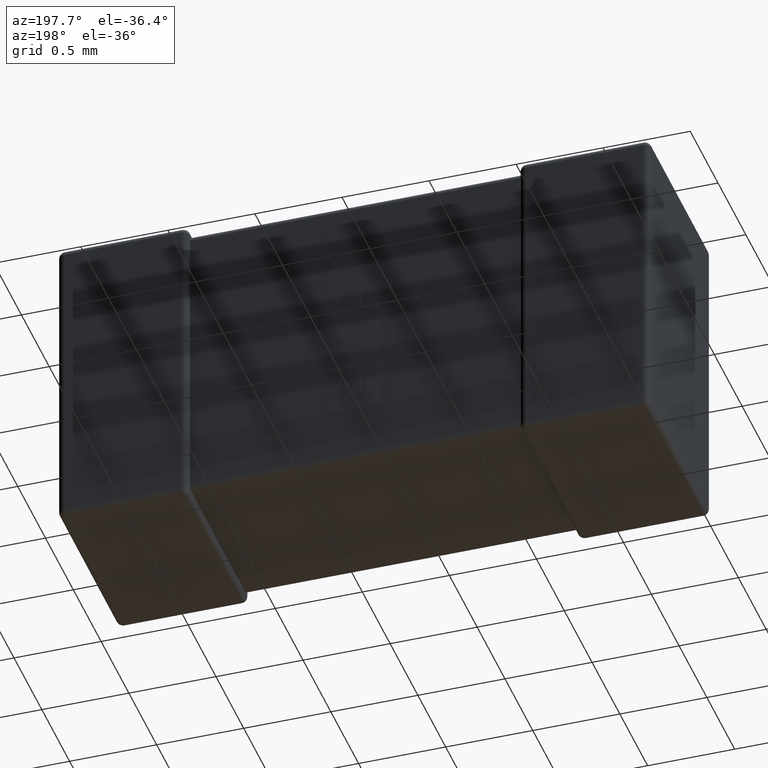
[diagram: clean part render]
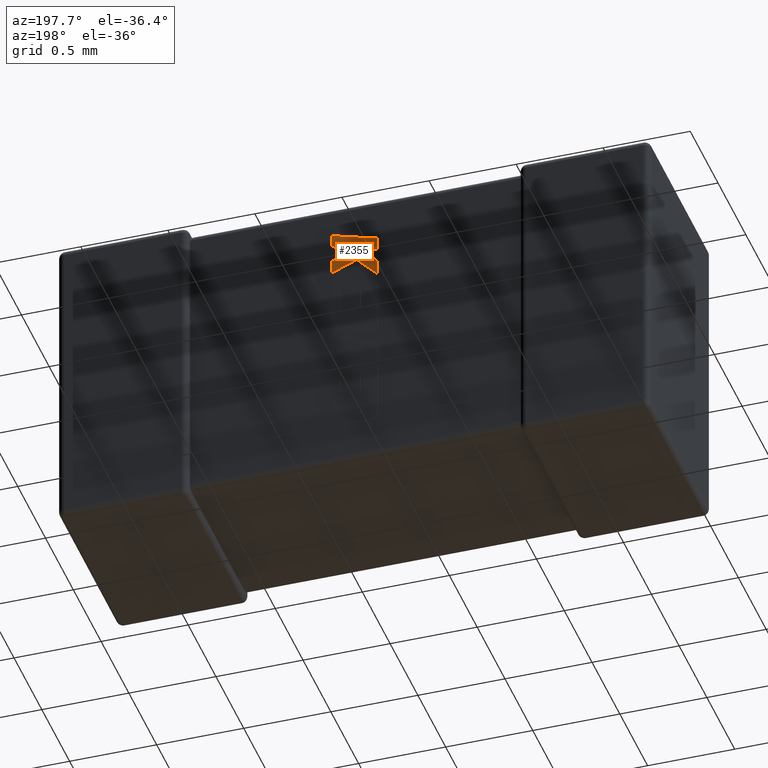
[diagram: same view with one face highlighted and labeled with its STEP entity id]
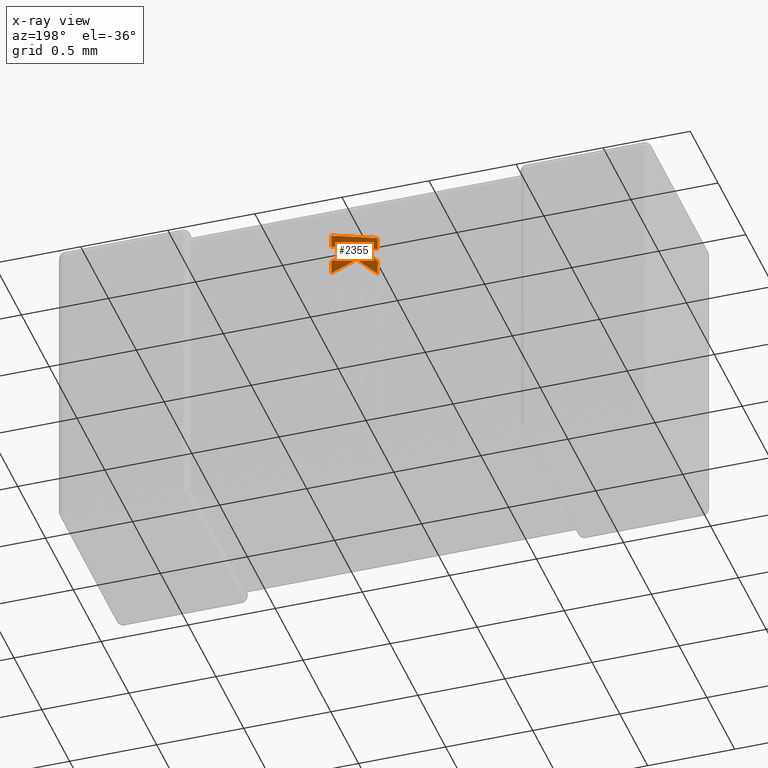
[diagram: x-ray of the same camera — body ghosted, the highlighted face saturated]
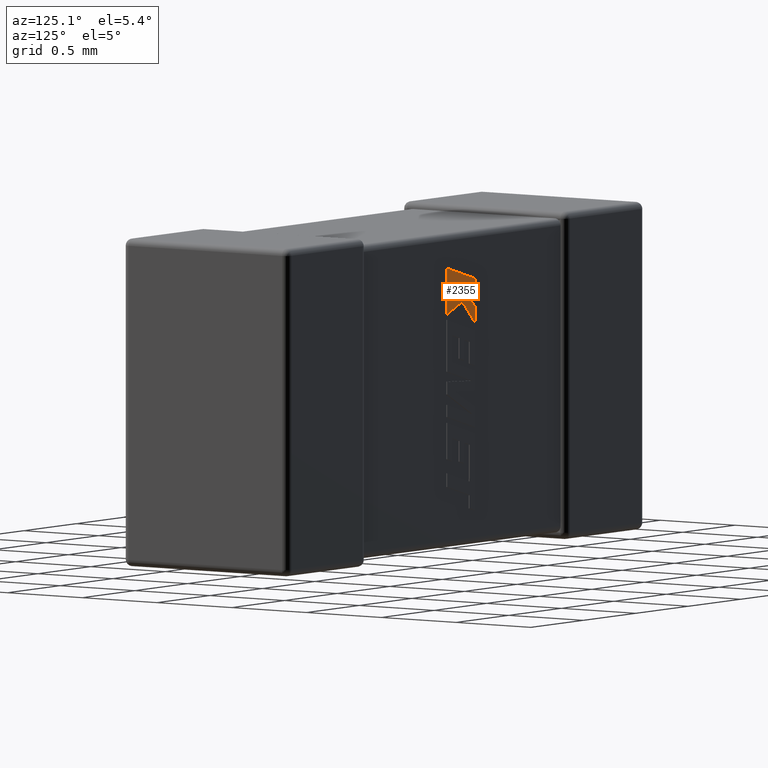
[diagram: same view with one face highlighted and labeled with its STEP entity id]
A machine part, auxiliary view. The second image highlights one B-rep face of the part: STEP entity #2355.
The next image is the same camera in x-ray: the body ghosted, the highlighted face saturated — about 0% of this face is hidden behind the body in this view.
A second angle (auxiliary view) of the same face is appended — the face is thin or edge-on in the first view.
In plain terms, the highlighted planar face has unit normal (0, -1, 0).
Its self-contained STEP definition (entity closure, byte-faithful):
#66 = EDGE_LOOP ( 'NONE', ( #1711, #3273, #3480, #2484, #4471, #1623, #2003, #3711, #3903, #789, #3450 ) ) ;
#153 = LINE ( 'NONE', #2323, #916 ) ;
#155 = VERTEX_POINT ( 'NONE', #2754 ) ;
#271 = DIRECTION ( 'NONE',  ( -0.6995643972270459976, 0.000000000000000000, -0.7145695586381775044 ) ) ;
#295 = LINE ( 'NONE', #347, #4530 ) ;
#334 = LINE ( 'NONE', #4652, #4189 ) ;
#347 = CARTESIAN_POINT ( 'NONE',  ( 1.571380152701791211, 1.067560000000000064, -0.3010471684901749878 ) ) ;
#353 = DIRECTION ( 'NONE',  ( 0.000000000000000000, 0.000000000000000000, 1.000000000000000000 ) ) ;
#439 = VERTEX_POINT ( 'NONE', #4401 ) ;
#500 = VECTOR ( 'NONE', #2322, 1000.000000000000000 ) ;
#638 = CARTESIAN_POINT ( 'NONE',  ( 1.571380152701791211, 1.067560000000000064, -0.3763935266988795436 ) ) ;
#678 = VECTOR ( 'NONE', #4644, 1000.000000000000000 ) ;
#789 = ORIENTED_EDGE ( 'NONE', *, *, #2748, .T. ) ;
#795 = EDGE_CURVE ( 'NONE', #439, #3981, #1867, .T. ) ;
#800 = LINE ( 'NONE', #1604, #1260 ) ;
#916 = VECTOR ( 'NONE', #1592, 1000.000000000000000 ) ;
#943 = CARTESIAN_POINT ( 'NONE',  ( 1.571380152701791211, 1.067560000000000064, -0.5435918942235931084 ) ) ;
#967 = CARTESIAN_POINT ( 'NONE',  ( 1.692318604814406546, 1.067560000000000064, -0.4200593978715118637 ) ) ;
#1220 = CARTESIAN_POINT ( 'NONE',  ( 1.571380152701791211, 1.067560000000000064, -0.4565079695552462513 ) ) ;
#1252 = VERTEX_POINT ( 'NONE', #2826 ) ;
#1257 = VECTOR ( 'NONE', #271, 1000.000000000000114 ) ;
#1260 = VECTOR ( 'NONE', #2683, 1000.000000000000000 ) ;
#1305 = VERTEX_POINT ( 'NONE', #638 ) ;
#1402 = CARTESIAN_POINT ( 'NONE',  ( 1.692318604814409877, 1.067560000000000064, -0.3414278406050550996 ) ) ;
#1497 = CARTESIAN_POINT ( 'NONE',  ( 0.06016339829042452458, 1.067559999999999842, 0.004072901265455560610 ) ) ;
#1542 = DIRECTION ( 'NONE',  ( 0.000000000000000000, -1.000000000000000000, 0.000000000000000000 ) ) ;
#1554 = DIRECTION ( 'NONE',  ( -0.9612861490927336883, 0.000000000000000000, -0.2755520632520512270 ) ) ;
#1570 = LINE ( 'NONE', #3695, #3430 ) ;
#1592 = DIRECTION ( 'NONE',  ( 0.7083077534944017817, 0.000000000000000000, 0.7059037656364454127 ) ) ;
#1604 = CARTESIAN_POINT ( 'NONE',  ( 1.836000000000004517, 1.067560000000000064, -0.4796162027347061207 ) ) ;
#1608 = VERTEX_POINT ( 'NONE', #3343 ) ;
#1623 = ORIENTED_EDGE ( 'NONE', *, *, #795, .T. ) ;
#1627 = EDGE_CURVE ( 'NONE', #155, #439, #800, .T. ) ;
#1631 = VECTOR ( 'NONE', #2178, 1000.000000000000114 ) ;
#1653 = LINE ( 'NONE', #1402, #2641 ) ;
#1711 = ORIENTED_EDGE ( 'NONE', *, *, #2606, .T. ) ;
#1726 = VERTEX_POINT ( 'NONE', #943 ) ;
#1848 = FACE_OUTER_BOUND ( 'NONE', #66, .T. ) ;
#1867 = LINE ( 'NONE', #2681, #1967 ) ;
#1967 = VECTOR ( 'NONE', #4130, 1000.000000000000114 ) ;
#1977 = EDGE_CURVE ( 'NONE', #3981, #1726, #2068, .T. ) ;
#2003 = ORIENTED_EDGE ( 'NONE', *, *, #1977, .T. ) ;
#2063 = DIRECTION ( 'NONE',  ( -0.9612934544747571142, 0.000000000000000000, -0.2755265765475047868 ) ) ;
#2068 = LINE ( 'NONE', #3491, #1257 ) ;
#2127 = LINE ( 'NONE', #2155, #1631 ) ;
#2155 = CARTESIAN_POINT ( 'NONE',  ( 1.835999999999999854, 1.067560000000000064, -0.2250000000000000056 ) ) ;
#2178 = DIRECTION ( 'NONE',  ( 0.9610992334315860974, 0.000000000000000000, 0.2762033010252007426 ) ) ;
#2304 = LINE ( 'NONE', #4479, #500 ) ;
#2322 = DIRECTION ( 'NONE',  ( 0.9280290862136694185, 0.000000000000000000, -0.3725077383644825324 ) ) ;
#2323 = CARTESIAN_POINT ( 'NONE',  ( 1.684224286292288486, 1.067560000000000064, -0.3440468275748999605 ) ) ;
#2355 = ADVANCED_FACE ( 'NONE', ( #1848 ), #3727, .F. ) ;
#2484 = ORIENTED_EDGE ( 'NONE', *, *, #2831, .T. ) ;
#2544 = DIRECTION ( 'NONE',  ( 0.000000000000000000, 0.000000000000000000, -1.000000000000000000 ) ) ;
#2592 = CARTESIAN_POINT ( 'NONE',  ( 1.836000000000004517, 1.067560000000000064, -0.3002457824678896325 ) ) ;
#2606 = EDGE_CURVE ( 'NONE', #4442, #1608, #2127, .T. ) ;
#2607 = EDGE_CURVE ( 'NONE', #1726, #3228, #334, .T. ) ;
#2641 = VECTOR ( 'NONE', #2063, 1000.000000000000114 ) ;
#2681 = CARTESIAN_POINT ( 'NONE',  ( 1.692318604814406546, 1.067560000000000064, -0.4200593978715118637 ) ) ;
#2683 = DIRECTION ( 'NONE',  ( 0.000000000000000000, 0.000000000000000000, -1.000000000000000000 ) ) ;
#2748 = EDGE_CURVE ( 'NONE', #4651, #1305, #1570, .T. ) ;
#2754 = CARTESIAN_POINT ( 'NONE',  ( 1.836000000000004517, 1.067560000000000064, -0.3991010669734324501 ) ) ;
#2826 = CARTESIAN_POINT ( 'NONE',  ( 1.692318604814409877, 1.067560000000000064, -0.3414278406050550996 ) ) ;
#2831 = EDGE_CURVE ( 'NONE', #1252, #155, #2304, .T. ) ;
#3189 = LINE ( 'NONE', #4213, #678 ) ;
#3228 = VERTEX_POINT ( 'NONE', #1220 ) ;
#3241 = VERTEX_POINT ( 'NONE', #2592 ) ;
#3273 = ORIENTED_EDGE ( 'NONE', *, *, #3705, .T. ) ;
#3343 = CARTESIAN_POINT ( 'NONE',  ( 1.835999999999999854, 1.067560000000000064, -0.2250000000000000056 ) ) ;
#3430 = VECTOR ( 'NONE', #1554, 1000.000000000000114 ) ;
#3450 = ORIENTED_EDGE ( 'NONE', *, *, #3648, .T. ) ;
#3480 = ORIENTED_EDGE ( 'NONE', *, *, #3986, .T. ) ;
#3491 = CARTESIAN_POINT ( 'NONE',  ( 1.571380152701791211, 1.067560000000000064, -0.5435918942235931084 ) ) ;
#3648 = EDGE_CURVE ( 'NONE', #1305, #4442, #295, .T. ) ;
#3695 = CARTESIAN_POINT ( 'NONE',  ( 1.571380152701791211, 1.067560000000000064, -0.3763935266988795436 ) ) ;
#3705 = EDGE_CURVE ( 'NONE', #1608, #3241, #3189, .T. ) ;
#3711 = ORIENTED_EDGE ( 'NONE', *, *, #2607, .T. ) ;
#3727 = PLANE ( 'NONE',  #4185 ) ;
#3828 = DIRECTION ( 'NONE',  ( 0.000000000000000000, 0.000000000000000000, 1.000000000000000000 ) ) ;
#3856 = EDGE_CURVE ( 'NONE', #3228, #4651, #153, .T. ) ;
#3903 = ORIENTED_EDGE ( 'NONE', *, *, #3856, .T. ) ;
#3981 = VERTEX_POINT ( 'NONE', #967 ) ;
#3986 = EDGE_CURVE ( 'NONE', #3241, #1252, #1653, .T. ) ;
#4070 = CARTESIAN_POINT ( 'NONE',  ( 1.684224286292288486, 1.067560000000000064, -0.3440468275748999605 ) ) ;
#4130 = DIRECTION ( 'NONE',  ( -0.9237839814038673047, 0.000000000000000000, 0.3829140317376986680 ) ) ;
#4185 = AXIS2_PLACEMENT_3D ( 'NONE', #1497, #1542, #2544 ) ;
#4189 = VECTOR ( 'NONE', #353, 1000.000000000000000 ) ;
#4213 = CARTESIAN_POINT ( 'NONE',  ( 1.836000000000004517, 1.067560000000000064, -0.3002457824678896325 ) ) ;
#4401 = CARTESIAN_POINT ( 'NONE',  ( 1.836000000000004517, 1.067560000000000064, -0.4796162027347061207 ) ) ;
#4442 = VERTEX_POINT ( 'NONE', #4469 ) ;
#4469 = CARTESIAN_POINT ( 'NONE',  ( 1.571380152701791211, 1.067560000000000064, -0.3010471684901749878 ) ) ;
#4471 = ORIENTED_EDGE ( 'NONE', *, *, #1627, .T. ) ;
#4479 = CARTESIAN_POINT ( 'NONE',  ( 1.836000000000004517, 1.067560000000000064, -0.3991010669734324501 ) ) ;
#4530 = VECTOR ( 'NONE', #3828, 1000.000000000000000 ) ;
#4644 = DIRECTION ( 'NONE',  ( 5.943634068010692500E-14, 0.000000000000000000, -1.000000000000000000 ) ) ;
#4651 = VERTEX_POINT ( 'NONE', #4070 ) ;
#4652 = CARTESIAN_POINT ( 'NONE',  ( 1.571380152701791211, 1.067560000000000064, -0.4565079695552462513 ) ) ;